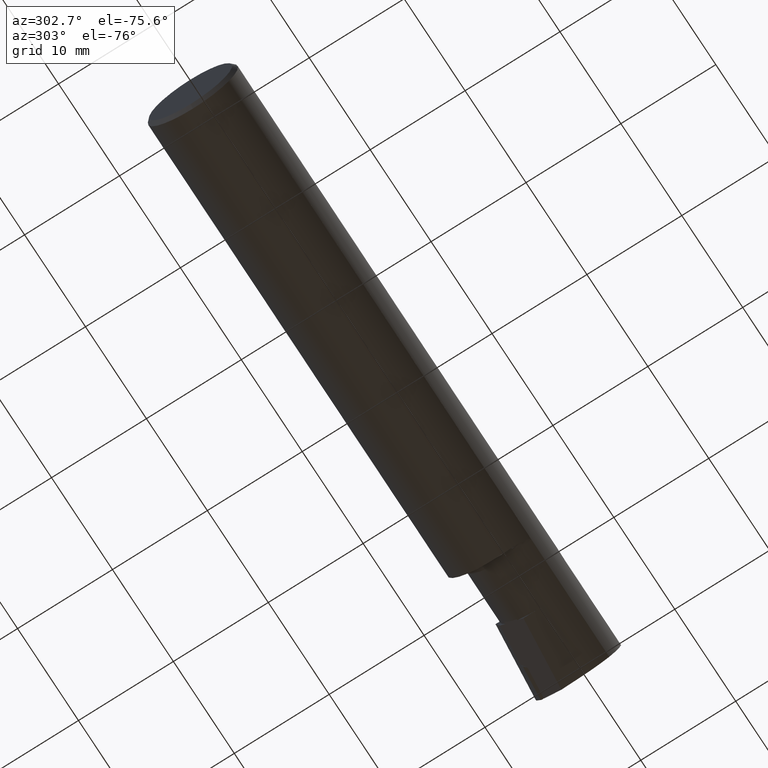
[diagram: clean part render]
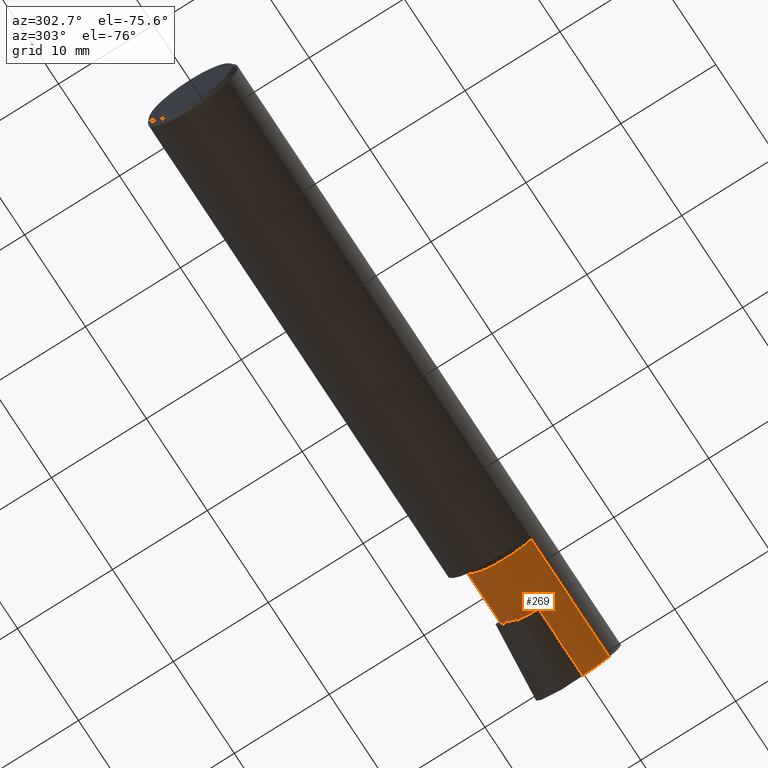
[diagram: same view with one face highlighted and labeled with its STEP entity id]
A machine part, auxiliary view. The second image highlights one B-rep face of the part: STEP entity #269.
In plain terms, the highlighted cylindrical surface (partial cylindrical patch) has radius 4.064 mm, axis along (-1, -0, -0).
Its self-contained STEP definition (entity closure, byte-faithful):
#30 = CARTESIAN_POINT ( 'NONE',  ( 1.993787383265071655, 0.07590468840762579217, 0.1362626167349281492 ) ) ;
#40 = CARTESIAN_POINT ( 'NONE',  ( 2.183339494671919123, 0.08760833798348248436, -0.1029474368865144207 ) ) ;
#51 = VERTEX_POINT ( 'NONE', #894 ) ;
#54 = DIRECTION ( 'NONE',  ( 0.000000000000000000, 0.000000000000000000, 1.000000000000000000 ) ) ;
#55 = ORIENTED_EDGE ( 'NONE', *, *, #536, .T. ) ;
#56 = DIRECTION ( 'NONE',  ( -1.000000000000000000, -0.000000000000000000, -0.000000000000000000 ) ) ;
#72 = CARTESIAN_POINT ( 'NONE',  ( 2.189999999999999947, 0.1226500000000000090, -3.414809992080329023E-17 ) ) ;
#88 = DIRECTION ( 'NONE',  ( 0.000000000000000000, 0.000000000000000000, 1.000000000000000000 ) ) ;
#108 = EDGE_CURVE ( 'NONE', #202, #177, #698, .T. ) ;
#112 =( BOUNDED_CURVE ( )  B_SPLINE_CURVE ( 3, ( #1071, #481, #981, #210 ),
 .UNSPECIFIED., .F., .T. ) 
 B_SPLINE_CURVE_WITH_KNOTS ( ( 4, 4 ),
 ( 2.906964023925625806, 2.922841759402729611 ),
 .UNSPECIFIED. ) 
 CURVE ( )  GEOMETRIC_REPRESENTATION_ITEM ( )  RATIONAL_B_SPLINE_CURVE ( ( 1.000000000000000000, 0.9999789915700160181, 0.9999789915700160181, 1.000000000000000000 ) ) 
 REPRESENTATION_ITEM ( '' )  );
#113 = CARTESIAN_POINT ( 'NONE',  ( 2.475215915314673332, -0.07804297771170461140, -0.1599999999999999756 ) ) ;
#126 = DIRECTION ( 'NONE',  ( 1.000000000000000000, 0.000000000000000000, 0.000000000000000000 ) ) ;
#140 = CARTESIAN_POINT ( 'NONE',  ( 2.129999999999999893, 0.1226499921874998761, 4.999999999973721212E-05 ) ) ;
#155 = CYLINDRICAL_SURFACE ( 'NONE', #890, 0.1600000000000000033 ) ;
#156 = EDGE_CURVE ( 'NONE', #744, #498, #603, .T. ) ;
#161 = EDGE_CURVE ( 'NONE', #202, #744, #489, .T. ) ;
#177 = VERTEX_POINT ( 'NONE', #1231 ) ;
#178 = DIRECTION ( 'NONE',  ( 0.000000000000000000, 0.000000000000000000, -1.000000000000000000 ) ) ;
#198 = EDGE_CURVE ( 'NONE', #490, #899, #776, .T. ) ;
#202 = VERTEX_POINT ( 'NONE', #544 ) ;
#210 = CARTESIAN_POINT ( 'NONE',  ( 2.189999999999999947, 0.09892832815658940404, -0.08383446352691081849 ) ) ;
#215 = EDGE_CURVE ( 'NONE', #928, #490, #749, .T. ) ;
#237 = DIRECTION ( 'NONE',  ( 0.000000000000000000, 0.000000000000000000, 1.000000000000000000 ) ) ;
#245 = CARTESIAN_POINT ( 'NONE',  ( 1.974999999999999867, -0.03734999999999999432, -0.1600000000000000033 ) ) ;
#254 = DIRECTION ( 'NONE',  ( -1.000000000000000000, -0.000000000000000000, -0.000000000000000000 ) ) ;
#255 = CIRCLE ( 'NONE', #994, 0.1600000000000000033 ) ;
#259 = CARTESIAN_POINT ( 'NONE',  ( 1.974999999999999867, -0.1458506693440427548, -0.1175908361731248936 ) ) ;
#262 = EDGE_CURVE ( 'NONE', #51, #1077, #975, .T. ) ;
#269 = ADVANCED_FACE ( 'NONE', ( #745 ), #155, .T. ) ;
#273 = CARTESIAN_POINT ( 'NONE',  ( 2.069999999999999840, -0.1458506693440427548, -0.1175908361731248936 ) ) ;
#290 = CARTESIAN_POINT ( 'NONE',  ( 2.181738322109779915, 0.1002421959724121570, -0.08166019597998362689 ) ) ;
#292 = EDGE_CURVE ( 'NONE', #51, #722, #950, .T. ) ;
#355 = VECTOR ( 'NONE', #583, 39.37007874015748143 ) ;
#382 = CARTESIAN_POINT ( 'NONE',  ( 2.186606679638320117, 0.04968236991043955414, -0.1342585810582415107 ) ) ;
#413 = DIRECTION ( 'NONE',  ( -1.000000000000000000, -0.000000000000000000, -0.000000000000000000 ) ) ;
#414 = CARTESIAN_POINT ( 'NONE',  ( 2.478260734595986392, -0.1458506693440426993, -0.1175908361731249352 ) ) ;
#438 = DIRECTION ( 'NONE',  ( 0.000000000000000000, 0.000000000000000000, 1.000000000000000000 ) ) ;
#466 = CARTESIAN_POINT ( 'NONE',  ( 2.476288392475423983, -0.03734999999999997350, -0.1600000000000000033 ) ) ;
#475 = CARTESIAN_POINT ( 'NONE',  ( 2.129999999999999893, 0.1226500000000000090, -3.414809992080329023E-17 ) ) ;
#481 = CARTESIAN_POINT ( 'NONE',  ( 2.184586972752177836, 0.09980999843555199424, -0.08238842112660252348 ) ) ;
#483 = CARTESIAN_POINT ( 'NONE',  ( 2.475904879864233799, -0.1159436613722071852, -0.1451859319188884556 ) ) ;
#489 = CIRCLE ( 'NONE', #993, 0.1600000000000000033 ) ;
#490 = VERTEX_POINT ( 'NONE', #259 ) ;
#498 = VERTEX_POINT ( 'NONE', #72 ) ;
#530 = CARTESIAN_POINT ( 'NONE',  ( 1.974999999999999867, 0.002140473534764736774, 0.1550500000000001599 ) ) ;
#536 = EDGE_CURVE ( 'NONE', #498, #685, #255, .T. ) ;
#540 = CARTESIAN_POINT ( 'NONE',  ( 2.478260734595986392, -0.1458506693440426993, -0.1175908361731249352 ) ) ;
#544 = CARTESIAN_POINT ( 'NONE',  ( 2.129999999999999893, 0.1226499921874998761, 4.999999999973721212E-05 ) ) ;
#549 = ORIENTED_EDGE ( 'NONE', *, *, #262, .T. ) ;
#550 = CARTESIAN_POINT ( 'NONE',  ( 2.189999999999999947, 0.05057386360349683252, -0.1336764534577189190 ) ) ;
#561 = CARTESIAN_POINT ( 'NONE',  ( 2.189999999999999947, -0.03734999999999997350, -0.1600000000000000033 ) ) ;
#565 = CARTESIAN_POINT ( 'NONE',  ( 2.189999999999999947, -0.03734999999999999432, 0.000000000000000000 ) ) ;
#583 = DIRECTION ( 'NONE',  ( -1.000000000000000000, -0.000000000000000000, -0.000000000000000000 ) ) ;
#591 = AXIS2_PLACEMENT_3D ( 'NONE', #565, #254, #88 ) ;
#598 = VERTEX_POINT ( 'NONE', #466 ) ;
#602 = ORIENTED_EDGE ( 'NONE', *, *, #831, .T. ) ;
#603 = LINE ( 'NONE', #1097, #1011 ) ;
#645 = EDGE_CURVE ( 'NONE', #598, #1077, #680, .T. ) ;
#659 = DIRECTION ( 'NONE',  ( -1.000000000000000000, -0.000000000000000000, -0.000000000000000000 ) ) ;
#663 = CARTESIAN_POINT ( 'NONE',  ( 2.186606679638320117, 0.04968236991043955414, -0.1342585810582415107 ) ) ;
#680 = LINE ( 'NONE', #1078, #355 ) ;
#681 = CARTESIAN_POINT ( 'NONE',  ( 2.187754451544411616, 0.04998017955827684794, -0.1340655276293346021 ) ) ;
#682 = EDGE_CURVE ( 'NONE', #985, #685, #112, .T. ) ;
#685 = VERTEX_POINT ( 'NONE', #1181 ) ;
#696 = CIRCLE ( 'NONE', #891, 0.1600000000000000033 ) ;
#697 = ORIENTED_EDGE ( 'NONE', *, *, #108, .F. ) ;
#698 =( BOUNDED_CURVE ( )  B_SPLINE_CURVE ( 3, ( #140, #887, #30, #530 ),
 .UNSPECIFIED., .F., .F. ) 
 B_SPLINE_CURVE_WITH_KNOTS ( ( 4, 4 ),
 ( 4.712701480389775099, 6.033792641812827817 ),
 .UNSPECIFIED. ) 
 CURVE ( )  GEOMETRIC_REPRESENTATION_ITEM ( )  RATIONAL_B_SPLINE_CURVE ( ( 1.000000000000000000, 0.8597717394744912589, 0.8597717394744912589, 1.000000000000000000 ) ) 
 REPRESENTATION_ITEM ( '' )  );
#710 = AXIS2_PLACEMENT_3D ( 'NONE', #1023, #1243, #178 ) ;
#722 = VERTEX_POINT ( 'NONE', #663 ) ;
#726 = ORIENTED_EDGE ( 'NONE', *, *, #822, .F. ) ;
#729 = DIRECTION ( 'NONE',  ( 1.000000000000000000, 0.000000000000000000, 0.000000000000000000 ) ) ;
#744 = VERTEX_POINT ( 'NONE', #475 ) ;
#745 = FACE_OUTER_BOUND ( 'NONE', #1210, .T. ) ;
#749 = LINE ( 'NONE', #273, #1035 ) ;
#776 = CIRCLE ( 'NONE', #710, 0.1600000000000000033 ) ;
#781 =( BOUNDED_CURVE ( )  B_SPLINE_CURVE ( 3, ( #827, #1101, #40, #1109 ),
 .UNSPECIFIED., .F., .F. ) 
 B_SPLINE_CURVE_WITH_KNOTS ( ( 4, 4 ),
 ( 4.501254466373842078, 4.961288516796046544 ),
 .UNSPECIFIED. ) 
 CURVE ( )  GEOMETRIC_REPRESENTATION_ITEM ( )  RATIONAL_B_SPLINE_CURVE ( ( 1.000000000000000000, 0.9824416756658651551, 0.9824416756658651551, 1.000000000000000000 ) ) 
 REPRESENTATION_ITEM ( '' )  );
#809 = CARTESIAN_POINT ( 'NONE',  ( 1.974999999999999867, -0.03734999999999999432, 0.000000000000000000 ) ) ;
#822 = EDGE_CURVE ( 'NONE', #722, #985, #781, .T. ) ;
#827 = CARTESIAN_POINT ( 'NONE',  ( 2.186606679638320117, 0.04968236991043955414, -0.1342585810582415107 ) ) ;
#830 = CARTESIAN_POINT ( 'NONE',  ( 2.189999999999999947, -0.03734999999999999432, 0.000000000000000000 ) ) ;
#831 = EDGE_CURVE ( 'NONE', #899, #177, #696, .T. ) ;
#887 = CARTESIAN_POINT ( 'NONE',  ( 2.053880852606418728, 0.1226262049527779424, 0.07616914739358132680 ) ) ;
#890 = AXIS2_PLACEMENT_3D ( 'NONE', #916, #56, #438 ) ;
#891 = AXIS2_PLACEMENT_3D ( 'NONE', #809, #729, #1186 ) ;
#894 = CARTESIAN_POINT ( 'NONE',  ( 2.189999999999999947, 0.05057386360349683252, -0.1336764534577189190 ) ) ;
#898 = CARTESIAN_POINT ( 'NONE',  ( 2.129999999999999893, -0.03734999999999999432, 0.000000000000000000 ) ) ;
#899 = VERTEX_POINT ( 'NONE', #245 ) ;
#913 = ORIENTED_EDGE ( 'NONE', *, *, #156, .T. ) ;
#916 = CARTESIAN_POINT ( 'NONE',  ( 1.949999999999999956, -0.03734999999999999432, 0.000000000000000000 ) ) ;
#928 = VERTEX_POINT ( 'NONE', #540 ) ;
#950 =( BOUNDED_CURVE ( )  B_SPLINE_CURVE ( 3, ( #550, #982, #681, #382 ),
 .UNSPECIFIED., .F., .T. ) 
 B_SPLINE_CURVE_WITH_KNOTS ( ( 4, 4 ),
 ( 3.360343547776857953, 3.366998074347832492 ),
 .UNSPECIFIED. ) 
 CURVE ( )  GEOMETRIC_REPRESENTATION_ITEM ( )  RATIONAL_B_SPLINE_CURVE ( ( 1.000000000000000000, 0.9999963097764139608, 0.9999963097764139608, 1.000000000000000000 ) ) 
 REPRESENTATION_ITEM ( '' )  );
#962 = CARTESIAN_POINT ( 'NONE',  ( 2.476288392475423983, -0.03734999999999997350, -0.1600000000000000033 ) ) ;
#975 = CIRCLE ( 'NONE', #591, 0.1600000000000000033 ) ;
#981 = CARTESIAN_POINT ( 'NONE',  ( 2.187340923238427770, 0.09937203329598440216, -0.08311319220188072288 ) ) ;
#982 = CARTESIAN_POINT ( 'NONE',  ( 2.188885562505690441, 0.05027734521923696992, -0.1338714843797640663 ) ) ;
#985 = VERTEX_POINT ( 'NONE', #290 ) ;
#993 = AXIS2_PLACEMENT_3D ( 'NONE', #898, #413, #237 ) ;
#994 = AXIS2_PLACEMENT_3D ( 'NONE', #830, #1227, #54 ) ;
#1011 = VECTOR ( 'NONE', #126, 39.37007874015748143 ) ;
#1023 = CARTESIAN_POINT ( 'NONE',  ( 1.974999999999999867, -0.03734999999999999432, 0.000000000000000000 ) ) ;
#1035 = VECTOR ( 'NONE', #659, 39.37007874015748143 ) ;
#1038 = ORIENTED_EDGE ( 'NONE', *, *, #161, .T. ) ;
#1071 = CARTESIAN_POINT ( 'NONE',  ( 2.181738322109779915, 0.1002421959724121570, -0.08166019597998362689 ) ) ;
#1077 = VERTEX_POINT ( 'NONE', #561 ) ;
#1078 = CARTESIAN_POINT ( 'NONE',  ( 2.500000000000001332, -0.03734999999999997350, -0.1600000000000000033 ) ) ;
#1081 = ORIENTED_EDGE ( 'NONE', *, *, #292, .F. ) ;
#1095 = ORIENTED_EDGE ( 'NONE', *, *, #682, .F. ) ;
#1097 = CARTESIAN_POINT ( 'NONE',  ( 1.949999999999999956, 0.1226500000000000090, -3.414809992080329023E-17 ) ) ;
#1101 = CARTESIAN_POINT ( 'NONE',  ( 2.184991283152642350, 0.07045385871877878070, -0.1207935802865313657 ) ) ;
#1109 = CARTESIAN_POINT ( 'NONE',  ( 2.181738322109779915, 0.1002421959724121570, -0.08166019597998362689 ) ) ;
#1112 = ORIENTED_EDGE ( 'NONE', *, *, #215, .T. ) ;
#1140 = ORIENTED_EDGE ( 'NONE', *, *, #645, .F. ) ;
#1163 =( BOUNDED_CURVE ( )  B_SPLINE_CURVE ( 3, ( #414, #483, #113, #962 ),
 .UNSPECIFIED., .F., .F. ) 
 B_SPLINE_CURVE_WITH_KNOTS ( ( 4, 4 ),
 ( 5.765290843685597189, 6.510504952073413953 ),
 .UNSPECIFIED. ) 
 CURVE ( )  GEOMETRIC_REPRESENTATION_ITEM ( )  RATIONAL_B_SPLINE_CURVE ( ( 1.000000000000000000, 0.9542542848386187382, 0.9542542848386187382, 1.000000000000000000 ) ) 
 REPRESENTATION_ITEM ( '' )  );
#1168 = EDGE_CURVE ( 'NONE', #928, #598, #1163, .T. ) ;
#1181 = CARTESIAN_POINT ( 'NONE',  ( 2.189999999999999947, 0.09892832815658940404, -0.08383446352691081849 ) ) ;
#1183 = ORIENTED_EDGE ( 'NONE', *, *, #1168, .F. ) ;
#1186 = DIRECTION ( 'NONE',  ( 0.000000000000000000, 0.000000000000000000, -1.000000000000000000 ) ) ;
#1210 = EDGE_LOOP ( 'NONE', ( #1095, #726, #1081, #549, #1140, #1183, #1112, #1242, #602, #697, #1038, #913, #55 ) ) ;
#1227 = DIRECTION ( 'NONE',  ( -1.000000000000000000, -0.000000000000000000, -0.000000000000000000 ) ) ;
#1231 = CARTESIAN_POINT ( 'NONE',  ( 1.974999999999999867, 0.002140473534764736774, 0.1550500000000001599 ) ) ;
#1242 = ORIENTED_EDGE ( 'NONE', *, *, #198, .T. ) ;
#1243 = DIRECTION ( 'NONE',  ( 1.000000000000000000, 0.000000000000000000, 0.000000000000000000 ) ) ;